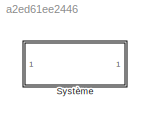
MODEL slx_a2ed61ee2446
KIND model
CONFIG AbsTol = auto
CONFIG EnableMultiTasking = off
CONFIG FixedStep = auto
CONFIG MaxStep = auto
CONFIG MinStep = auto
CONFIG RelTol = 1e-3
CONFIG SampleTimeConstraint = Unconstrained
CONFIG SolverName = ode45
CONFIG StartTime = 0.0
CONFIG StopTime = 5
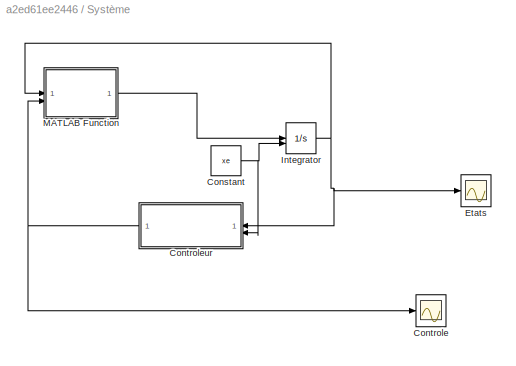
BLOCK [SubSystem] Système
BLOCK [Constant] Système/Constant
  Value = xe
BLOCK [Scope] Système/Controle
  Floating = off
  NumInputPorts = 1
  ScopeSpecificationString = Simulink.scopes.TimeScopeBlockCfg('CurrentConfiguration', extmgr.ConfigurationSet(extmgr.Configuration('Core','General UI',true),extmgr.Configuration('Core','Source UI',true),extmgr.Configuration('Sources','WiredSimulink',true,'DataLoggingVariableName','ScopeData1'),extmgr.Configuration('Visuals','Time Domain',true,'SerializedDisplays',{struct('MinYLimReal','-0.93986','MaxYLimReal','8.45874','YLab...<+1423ch>
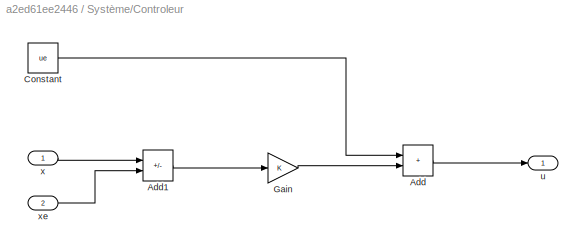
BLOCK [SubSystem] Système/Controleur
BLOCK [Sum] Système/Controleur/Add
  IconShape = rectangular
BLOCK [Sum] Système/Controleur/Add1
  IconShape = rectangular
  Inputs = +-
BLOCK [Constant] Système/Controleur/Constant
  Value = ue
BLOCK [Gain] Système/Controleur/Gain
  Gain = K
  Multiplication = Matrix(K*u)
BLOCK [Outport] Système/Controleur/u
BLOCK [Inport] Système/Controleur/x
BLOCK [Inport] Système/Controleur/xe
  Port = 2
BLOCK [Scope] Système/Etats
  Floating = off
  NumInputPorts = 1
  ScopeSpecificationString = Simulink.scopes.TimeScopeBlockCfg('CurrentConfiguration', extmgr.ConfigurationSet(extmgr.Configuration('Core','General UI',true),extmgr.Configuration('Core','Source UI',true),extmgr.Configuration('Sources','WiredSimulink',true),extmgr.Configuration('Visuals','Time Domain',true,'SerializedDisplays',{struct('MinYLimReal','-3.68125','MaxYLimReal','15.12548','YLabelReal','','MinYLimMag','0.00000','Max...<+1460ch>
BLOCK [Integrator] Système/Integrator
  InitialConditionSource = external
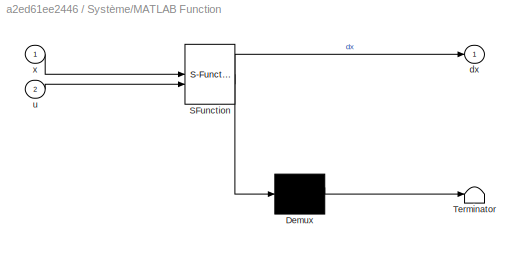
BLOCK [SubSystem] Système/MATLAB Function
  ErrorFcn = Stateflow.Translate.translate
  LibrarySourceBlock = simulink/User-Defined\nFunctions/MATLAB Function
  PermitHierarchicalResolution = ExplicitOnly
  SFBlockType = MATLAB Function
  TreatAsAtomicUnit = on
BLOCK [Demux] Système/MATLAB Function/ Demux 
  Outputs = 1
BLOCK [S-Function] Système/MATLAB Function/ SFunction 
  EnableBusSupport = on
  FunctionName = sf_sfun
  PortCounts = [2 2]
  SFcnIsStateOwnerBlock = off
  SFunctionDeploymentMode = off
  Tag = Stateflow S-Function 2
BLOCK [Terminator] Système/MATLAB Function/ Terminator 
BLOCK [Outport] Système/MATLAB Function/dx
BLOCK [Inport] Système/MATLAB Function/u
  Port = 2
BLOCK [Inport] Système/MATLAB Function/x
NET Système/Constant:1 -> Système/Controleur:2, Système/Integrator:2
LINE Système/Controleur/Add1:1 -> Système/Controleur/Gain:1
LINE Système/Controleur/Add:1 -> Système/Controleur/u:1
LINE Système/Controleur/Constant:1 -> Système/Controleur/Add:1
LINE Système/Controleur/Gain:1 -> Système/Controleur/Add:2
LINE Système/Controleur/x:1 -> Système/Controleur/Add1:1
LINE Système/Controleur/xe:1 -> Système/Controleur/Add1:2
NET Système/Controleur:1 -> Système/Controle:1, Système/MATLAB Function:2
NET Système/Integrator:1 -> Système/Controleur:1, Système/Etats:1, Système/MATLAB Function:1
LINE Système/MATLAB Function:1 -> Système/Integrator:1
note: NET lines group one-source signal fan-out (src -> all destinations, sorted); 1:1 wires keep LINE
CHART Système/MATLAB Function states=1 transitions=1
  STATE_LABEL 'eML_blk_kernel()'
  STATE_LABEL 'SCRIPT:\nfunction dx   = fonction( x, u)\n%   Dynamic equations of motion of the segway on an axis.\n%   Inputs: - x = [theta psi dtheta dpsi]\n%               theta: average angle of the wheels      [rad]\n%               psi: body pitch angle                   [rad]\n%               dtheta: average velocity of the wheels  [rad/s]\n%               dpsi: body pitch velocity               [rad/s]\n%       ...<+1497ch>'
CHART  states=0 transitions=0
